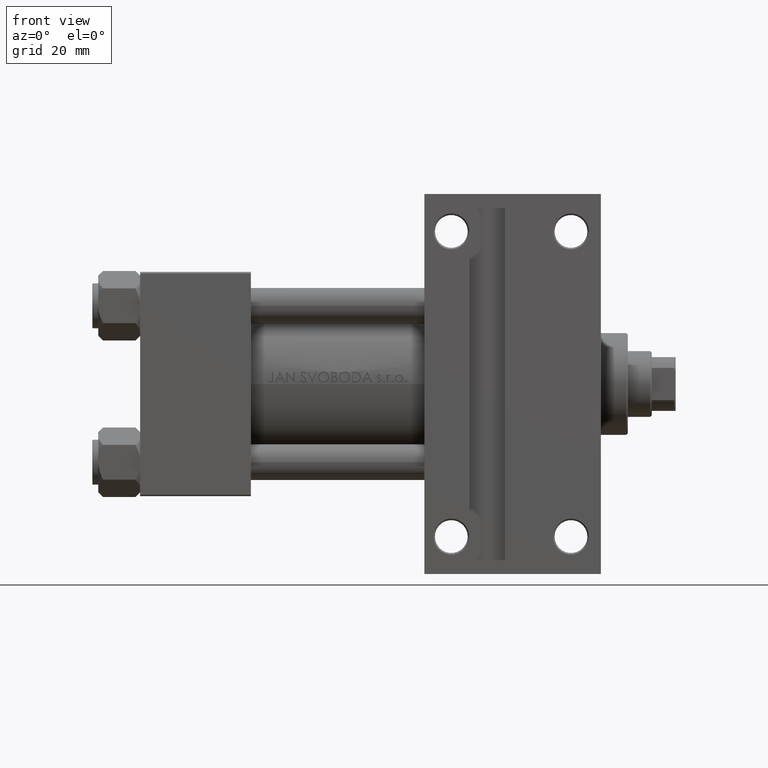
[diagram: clean part render]
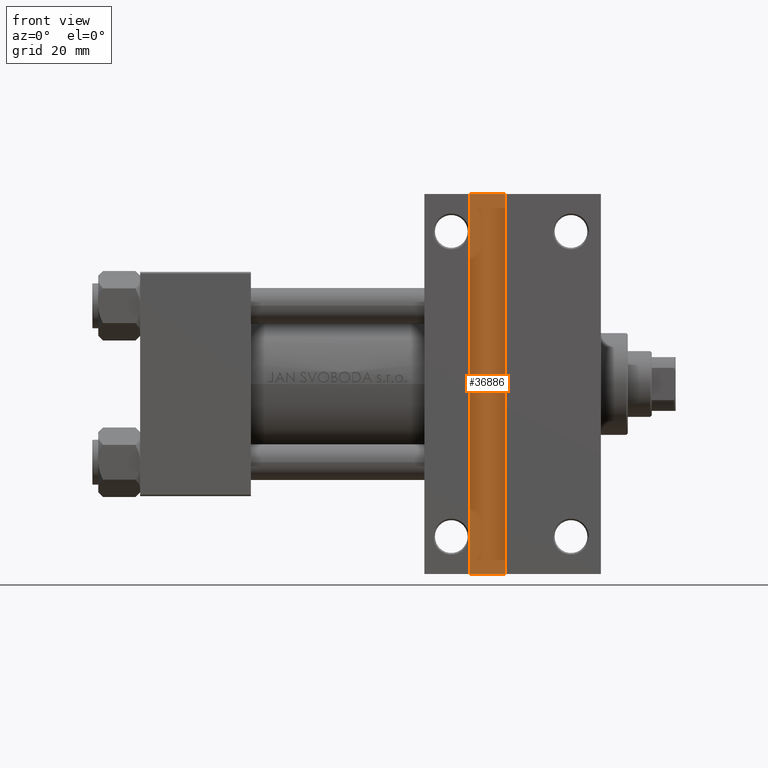
[diagram: same view with one face highlighted and labeled with its STEP entity id]
A machine part, front view. The second image highlights one B-rep face of the part: STEP entity #36886.
In plain terms, the highlighted planar face has unit normal (0, -1, 0).
Its self-contained STEP definition (entity closure, byte-faithful):
#49 = FACE_OUTER_BOUND ( 'NONE', #32575, .T. ) ;
#3787 = VERTEX_POINT ( 'NONE', #46099 ) ;
#5413 = AXIS2_PLACEMENT_3D ( 'NONE', #7719, #11575, #14735 ) ;
#7555 = VECTOR ( 'NONE', #28909, 1000.000000000000000 ) ;
#7719 = CARTESIAN_POINT ( 'NONE',  ( 0.000000000000000000, 0.000000000000000000, -32.00000000000000000 ) ) ;
#9436 = LINE ( 'NONE', #28454, #21111 ) ;
#9778 = CARTESIAN_POINT ( 'NONE',  ( 122.0000000000000000, -63.50000000000000000, -32.00000000000000000 ) ) ;
#11575 = DIRECTION ( 'NONE',  ( 0.000000000000000000, 0.000000000000000000, -1.000000000000000000 ) ) ;
#12233 = EDGE_CURVE ( 'NONE', #26003, #21548, #9436, .T. ) ;
#12928 = CARTESIAN_POINT ( 'NONE',  ( 122.0000000000000000, 63.50000000000000000, -32.00000000000000000 ) ) ;
#14735 = DIRECTION ( 'NONE',  ( -1.000000000000000000, 0.000000000000000000, -0.000000000000000000 ) ) ;
#15571 = CARTESIAN_POINT ( 'NONE',  ( 110.0000000000000000, -63.50000000000000000, -32.00000000000000000 ) ) ;
#17372 = LINE ( 'NONE', #39540, #7555 ) ;
#19432 = LINE ( 'NONE', #22582, #34822 ) ;
#21111 = VECTOR ( 'NONE', #28223, 1000.000000000000000 ) ;
#21548 = VERTEX_POINT ( 'NONE', #42339 ) ;
#22582 = CARTESIAN_POINT ( 'NONE',  ( 110.0000000000000000, -63.50000000000000000, -32.00000000000000000 ) ) ;
#26003 = VERTEX_POINT ( 'NONE', #15571 ) ;
#26711 = EDGE_CURVE ( 'NONE', #21548, #32440, #17372, .T. ) ;
#28223 = DIRECTION ( 'NONE',  ( 0.000000000000000000, 1.000000000000000000, 0.000000000000000000 ) ) ;
#28454 = CARTESIAN_POINT ( 'NONE',  ( 110.0000000000000000, -63.50000000000000000, -32.00000000000000000 ) ) ;
#28630 = VECTOR ( 'NONE', #32176, 1000.000000000000000 ) ;
#28909 = DIRECTION ( 'NONE',  ( 1.000000000000000000, 0.000000000000000000, 0.000000000000000000 ) ) ;
#32176 = DIRECTION ( 'NONE',  ( -0.000000000000000000, -1.000000000000000000, -0.000000000000000000 ) ) ;
#32440 = VERTEX_POINT ( 'NONE', #12928 ) ;
#32575 = EDGE_LOOP ( 'NONE', ( #44664, #36386, #38943, #37483 ) ) ;
#34822 = VECTOR ( 'NONE', #36820, 1000.000000000000000 ) ;
#36386 = ORIENTED_EDGE ( 'NONE', *, *, #45321, .T. ) ;
#36820 = DIRECTION ( 'NONE',  ( -1.000000000000000000, -0.000000000000000000, -0.000000000000000000 ) ) ;
#36886 = ADVANCED_FACE ( 'NONE', ( #49 ), #37598, .T. ) ;
#37483 = ORIENTED_EDGE ( 'NONE', *, *, #26711, .T. ) ;
#37598 = PLANE ( 'NONE',  #5413 ) ;
#38943 = ORIENTED_EDGE ( 'NONE', *, *, #12233, .T. ) ;
#39540 = CARTESIAN_POINT ( 'NONE',  ( 110.0000000000000000, 63.50000000000000000, -32.00000000000000000 ) ) ;
#39908 = EDGE_CURVE ( 'NONE', #32440, #3787, #42309, .T. ) ;
#42309 = LINE ( 'NONE', #9778, #28630 ) ;
#42339 = CARTESIAN_POINT ( 'NONE',  ( 110.0000000000000000, 63.50000000000000000, -32.00000000000000000 ) ) ;
#44664 = ORIENTED_EDGE ( 'NONE', *, *, #39908, .T. ) ;
#45321 = EDGE_CURVE ( 'NONE', #3787, #26003, #19432, .T. ) ;
#46099 = CARTESIAN_POINT ( 'NONE',  ( 122.0000000000000000, -63.50000000000001421, -32.00000000000000000 ) ) ;